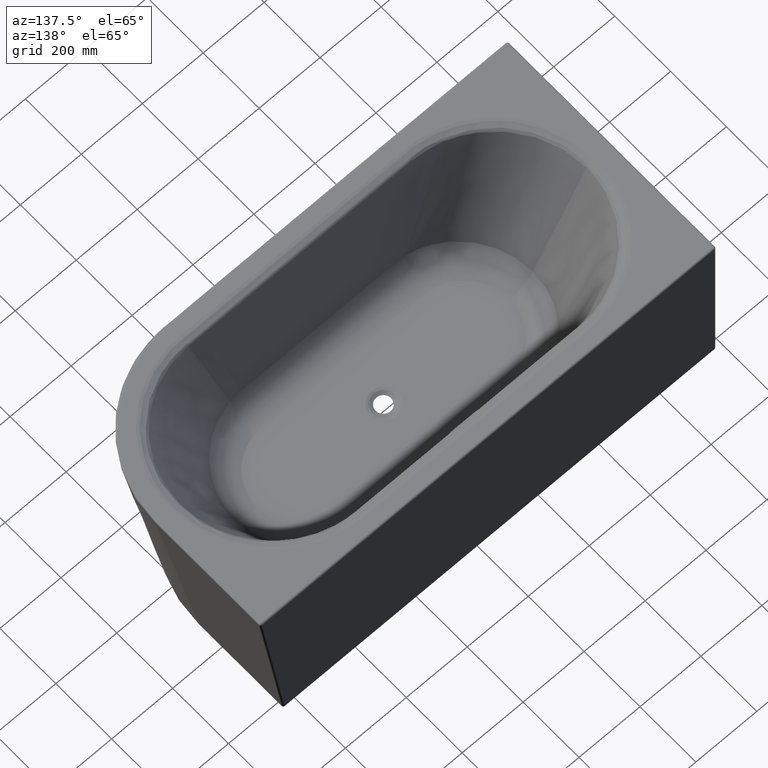
[diagram: clean part render]
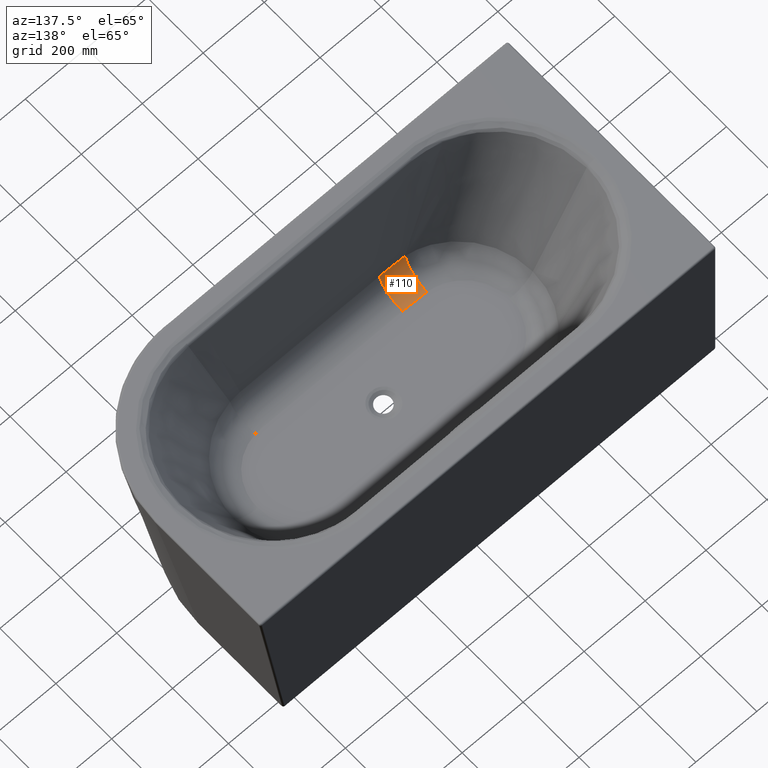
[diagram: same view with one face highlighted and labeled with its STEP entity id]
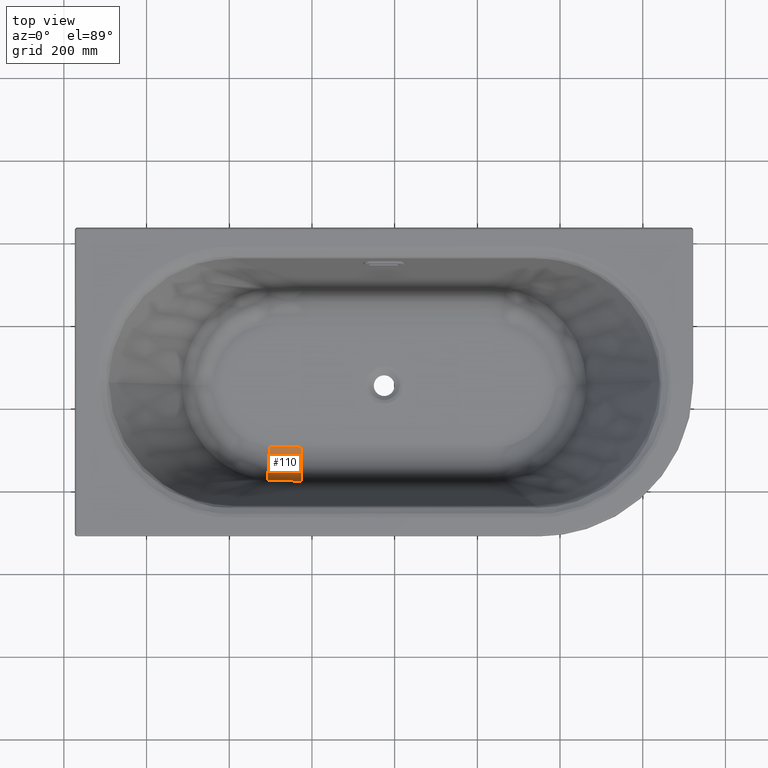
[diagram: same view with one face highlighted and labeled with its STEP entity id]
A machine part, auxiliary view. The second image highlights one B-rep face of the part: STEP entity #110.
A second angle (top view) of the same face is appended — the face is thin or edge-on in the first view.
In plain terms, the highlighted face is a freeform B-spline surface patch.
Its self-contained STEP definition (entity closure, byte-faithful):
#110=ADVANCED_FACE('',(#209),#2820,.T.);
#209=FACE_OUTER_BOUND('',#307,.T.);
#307=EDGE_LOOP('',(#550,#551,#552,#553,#554));
#550=ORIENTED_EDGE('',*,*,#2428,.T.);
#551=ORIENTED_EDGE('',*,*,#2429,.T.);
#552=ORIENTED_EDGE('',*,*,#2404,.F.);
#553=ORIENTED_EDGE('',*,*,#2427,.F.);
#554=ORIENTED_EDGE('',*,*,#2430,.T.);
#965=B_SPLINE_CURVE_WITH_KNOTS('',3,(#6560,#6561,#6562,#6563),
 .UNSPECIFIED.,.F.,.F.,(4,4),(-32.0872347102948,45.4151352668925),
 .UNSPECIFIED.);
#1015=B_SPLINE_CURVE_WITH_KNOTS('',3,(#7268,#7269,#7270,#7271,#7272,#7273,
#7274,#7275,#7276,#7277,#7278,#7279,#7280,#7281,#7282,#7283,#7284,#7285,
#7286),.UNSPECIFIED.,.F.,.F.,(4,1,1,1,1,1,1,1,1,1,1,1,1,1,1,1,4),(-116.389537965102,
-109.577034665057,-102.590154444686,-95.4465690161393,-88.166951918036,
-80.774753625021,-73.2958461006039,-65.7580439389367,-58.190520306169,-50.6231460979505,
-43.085788661365,-35.60761072539,-28.2164101632802,-20.9380368619322,-13.7959150388369,
-6.81068908766003,0.),.UNSPECIFIED.);
#1016=B_SPLINE_CURVE_WITH_KNOTS('',3,(#7287,#7288,#7289,#7290,#7291,#7292,
#7293,#7294,#7295,#7296,#7297,#7298,#7299,#7300,#7301,#7302,#7303,#7304,
#7305,#7306,#7307,#7308,#7309,#7310,#7311,#7312,#7313,#7314,#7315,#7316,
#7317,#7318,#7319,#7320,#7321,#7322,#7323,#7324,#7325,#7326,#7327,#7328,
#7329,#7330,#7331,#7332,#7333,#7334,#7335),.UNSPECIFIED.,.F.,.F.,(4,3,3,
3,3,3,3,3,3,3,3,3,3,3,3,3,4),(-116.389537965102,-109.114493566142,-101.839600853823,
-94.5648481651128,-87.2902233556285,-80.0157138422855,-72.74130666991,-65.4669885946587,
-58.1927462020986,-50.9185660510756,-43.6444348477708,-36.3703396513264,
-29.0962681091885,-21.822208715979,-14.548151092487,-7.27408627330581,0.),
 .UNSPECIFIED.);
#1019=B_SPLINE_CURVE_WITH_KNOTS('',1,(#7345,#7346),.UNSPECIFIED.,.F.,.F.,
(2,2),(-32.171669215299,45.4151352668924),.UNSPECIFIED.);
#1020=B_SPLINE_CURVE_WITH_KNOTS('',1,(#7350,#7351),.UNSPECIFIED.,.F.,.F.,
(2,2),(0.,200.439606159349),.UNSPECIFIED.);
#1021=B_SPLINE_CURVE_WITH_KNOTS('',1,(#7352,#7353),.UNSPECIFIED.,.F.,.F.,
(2,2),(-32.0872347102948,45.4151352668925),.UNSPECIFIED.);
#1022=B_SPLINE_CURVE_WITH_KNOTS('',3,(#7354,#7355,#7356,#7357,#7358,#7359,
#7360,#7361,#7362,#7363,#7364,#7365,#7366,#7367,#7368,#7369,#7370,#7371,
#7372,#7373,#7374,#7375,#7376,#7377,#7378,#7379,#7380,#7381,#7382,#7383,
#7384,#7385,#7386,#7387,#7388,#7389,#7390,#7391,#7392,#7393,#7394,#7395,
#7396,#7397,#7398,#7399,#7400,#7401,#7402),.UNSPECIFIED.,.F.,.F.,(4,3,3,
3,3,3,3,3,3,3,3,3,3,3,3,3,4),(-116.389537965102,-109.115207614353,-101.840904897584,
-94.5666240171274,-87.2923587281165,-80.0181024104598,-72.7438481743444,
-65.4695889850505,-58.1953178162318,-50.9210278092273,-43.6467124310471,
-36.3723656194939,-29.0979819039549,-21.8235564909947,-14.5490853118906,
-7.2745650294011,0.),.UNSPECIFIED.);
#1023=B_SPLINE_CURVE_WITH_KNOTS('',3,(#7403,#7404,#7405,#7406),
 .UNSPECIFIED.,.F.,.F.,(4,4),(0.,0.0734268300844306),.UNSPECIFIED.);
#1024=B_SPLINE_CURVE_WITH_KNOTS('',1,(#7407,#7408),.UNSPECIFIED.,.F.,.F.,
(2,2),(0.,0.0734268300844306),.UNSPECIFIED.);
#1028=B_SPLINE_CURVE_WITH_KNOTS('',1,(#7420,#7421),.UNSPECIFIED.,.F.,.F.,
(2,2),(0.,200.439606159349),.UNSPECIFIED.);
#1066=B_SPLINE_CURVE_WITH_KNOTS('',1,(#8057,#8058),.UNSPECIFIED.,.F.,.F.,
(2,2),(0.,0.0734268300844306),.UNSPECIFIED.);
#1071=B_SPLINE_CURVE_WITH_KNOTS('',3,(#8104,#8105,#8106,#8107,#8108,#8109,
#8110),.UNSPECIFIED.,.F.,.F.,(4,3,4),(-32.171669215299,17.4764213870852,
45.4151352668924),.UNSPECIFIED.);
#1416=PCURVE('',#2884,#1835);
#1456=PCURVE('',#2819,#1875);
#1459=PCURVE('',#2820,#1878);
#1460=PCURVE('',#2820,#1879);
#1461=PCURVE('',#2820,#1880);
#1462=PCURVE('',#2820,#1881);
#1463=PCURVE('',#2820,#1882);
#1467=PCURVE('',#2821,#1886);
#1501=PCURVE('',#2828,#1920);
#1506=PCURVE('',#2829,#1925);
#1835=DEFINITIONAL_REPRESENTATION('',(#965),#9406);
#1875=DEFINITIONAL_REPRESENTATION('',(#1016),#9406);
#1878=DEFINITIONAL_REPRESENTATION('',(#1019),#9406);
#1879=DEFINITIONAL_REPRESENTATION('',(#1020),#9406);
#1880=DEFINITIONAL_REPRESENTATION('',(#1021),#9406);
#1881=DEFINITIONAL_REPRESENTATION('',(#1022),#9406);
#1882=DEFINITIONAL_REPRESENTATION('',(#1024),#9406);
#1886=DEFINITIONAL_REPRESENTATION('',(#1028),#9406);
#1920=DEFINITIONAL_REPRESENTATION('',(#1066),#9406);
#1925=DEFINITIONAL_REPRESENTATION('',(#1071),#9406);
#2193=SURFACE_CURVE('',#2582,(#1416,#1461),.PCURVE_S1.);
#2216=SURFACE_CURVE('',#1015,(#1456,#1462),.PCURVE_S1.);
#2217=SURFACE_CURVE('',#2595,(#1459,#1506),.PCURVE_S1.);
#2218=SURFACE_CURVE('',#2596,(#1460,#1467),.PCURVE_S1.);
#2219=SURFACE_CURVE('',#1023,(#1463,#1501),.PCURVE_S1.);
#2404=EDGE_CURVE('',#2724,#2725,#2193,.T.);
#2427=EDGE_CURVE('',#2722,#2724,#2216,.T.);
#2428=EDGE_CURVE('',#2718,#2738,#2217,.T.);
#2429=EDGE_CURVE('',#2738,#2725,#2218,.T.);
#2430=EDGE_CURVE('',#2722,#2718,#2219,.T.);
#2582=(
BOUNDED_CURVE()
B_SPLINE_CURVE(3,(#6555,#6556,#6557,#6558,#6559),.UNSPECIFIED.,.F.,.F.)
B_SPLINE_CURVE_WITH_KNOTS((4,1,4),(-32.0872347102948,17.725912570119,45.4151352668925),
 .UNSPECIFIED.)
CURVE()
GEOMETRIC_REPRESENTATION_ITEM()
RATIONAL_B_SPLINE_CURVE((1.,1.,1.,1.,1.))
REPRESENTATION_ITEM('')
);
#2595=(
BOUNDED_CURVE()
B_SPLINE_CURVE(3,(#7340,#7341,#7342,#7343,#7344),.UNSPECIFIED.,.F.,.F.)
B_SPLINE_CURVE_WITH_KNOTS((4,1,4),(-32.171669215299,17.725912554297,45.4151352668924),
 .UNSPECIFIED.)
CURVE()
GEOMETRIC_REPRESENTATION_ITEM()
RATIONAL_B_SPLINE_CURVE((1.,1.,1.,1.,1.))
REPRESENTATION_ITEM('')
);
#2596=(
BOUNDED_CURVE()
B_SPLINE_CURVE(2,(#7347,#7348,#7349),.UNSPECIFIED.,.F.,.F.)
B_SPLINE_CURVE_WITH_KNOTS((3,3),(0.,200.439606159349),.UNSPECIFIED.)
CURVE()
GEOMETRIC_REPRESENTATION_ITEM()
RATIONAL_B_SPLINE_CURVE((1.,0.775061215074657,1.))
REPRESENTATION_ITEM('')
);
#2718=VERTEX_POINT('',#6230);
#2722=VERTEX_POINT('',#6234);
#2724=VERTEX_POINT('',#6236);
#2725=VERTEX_POINT('',#6237);
#2738=VERTEX_POINT('',#6250);
#2819=(
BOUNDED_SURFACE()
B_SPLINE_SURFACE(3,2,((#4296,#4297,#4298),(#4299,#4300,#4301),(#4302,#4303,
#4304),(#4305,#4306,#4307),(#4308,#4309,#4310),(#4311,#4312,#4313),(#4314,
#4315,#4316),(#4317,#4318,#4319),(#4320,#4321,#4322),(#4323,#4324,#4325),
(#4326,#4327,#4328),(#4329,#4330,#4331),(#4332,#4333,#4334),(#4335,#4336,
#4337),(#4338,#4339,#4340),(#4341,#4342,#4343),(#4344,#4345,#4346),(#4347,
#4348,#4349),(#4350,#4351,#4352),(#4353,#4354,#4355),(#4356,#4357,#4358),
(#4359,#4360,#4361),(#4362,#4363,#4364),(#4365,#4366,#4367),(#4368,#4369,
#4370),(#4371,#4372,#4373),(#4374,#4375,#4376),(#4377,#4378,#4379),(#4380,
#4381,#4382),(#4383,#4384,#4385)),.UNSPECIFIED.,.F.,.F.,.F.)
B_SPLINE_SURFACE_WITH_KNOTS((4,1,1,1,1,1,1,1,1,3,1,1,1,1,1,1,1,1,1,1,1,
1,1,1,1,4),(3,3),(0.,22.9260371211013,45.1281712701692,70.1432039021566,
95.717226519646,121.49917296828,147.111677117397,172.181060073661,196.367582974789,
222.241477246022,237.358445586721,252.257421762263,272.743171057424,296.238911675039,
307.647904335141,319.056896995243,330.784827523687,342.512758052131,364.410601663001,
386.308445273872,407.328120441605,428.347795609337,448.929564873141,469.511334136945,
489.429434059154,509.347533981363),(0.,143.279126187194),.UNSPECIFIED.)
GEOMETRIC_REPRESENTATION_ITEM()
RATIONAL_B_SPLINE_SURFACE(((1.,0.855173634899784,1.),(0.999999999999999,
0.855173516088905,0.999999999999999),(1.,0.854661443021368,1.),(1.,0.852258844188708,
1.),(1.,0.847952775916201,1.),(1.,0.841281344501854,1.),(0.999999999999998,
0.832225524495354,0.999999999999998),(0.999999999999999,0.820823931241338,
0.999999999999999),(1.,0.807373334128689,1.),(1.,0.791877705199914,1.),
(0.999999999999999,0.780517753786603,0.999999999999999),(1.,0.77450252003775,
1.),(1.,0.770988450967109,1.),(0.999999999999998,0.763915876754117,0.999999999999998),
(1.,0.751902272565163,1.),(1.,0.738023072045508,1.),(1.,0.725541549006977,
1.),(0.999999999999997,0.715754831360632,0.999999999999997),(1.,0.708817872007796,
1.),(1.,0.702235843624369,1.),(0.999999999999999,0.694273654752463,0.999999999999999),
(1.,0.685657204036153,1.),(1.,0.677483056835672,1.),(1.,0.671360525472543,
1.),(0.999999999999999,0.667314222161437,0.999999999999999),(1.,0.665282767922058,
1.),(1.,0.66526904869766,1.),(1.,0.667214134989987,1.),(1.,0.669768877677087,
1.),(1.,0.671359554040108,1.)))
REPRESENTATION_ITEM('')
SURFACE()
);
#2820=(
BOUNDED_SURFACE()
B_SPLINE_SURFACE(3,2,((#4386,#4387,#4388),(#4389,#4390,#4391),(#4392,#4393,
#4394),(#4395,#4396,#4397),(#4398,#4399,#4400),(#4401,#4402,#4403),(#4404,
#4405,#4406),(#4407,#4408,#4409),(#4410,#4411,#4412),(#4413,#4414,#4415),
(#4416,#4417,#4418),(#4419,#4420,#4421),(#4422,#4423,#4424),(#4425,#4426,
#4427),(#4428,#4429,#4430),(#4431,#4432,#4433),(#4434,#4435,#4436),(#4437,
#4438,#4439),(#4440,#4441,#4442),(#4443,#4444,#4445),(#4446,#4447,#4448)),
 .UNSPECIFIED.,.F.,.F.,.F.)
B_SPLINE_SURFACE_WITH_KNOTS((4,1,1,1,1,1,1,1,3,1,1,1,3,1,4),(3,3),(-452.032191826847,
-423.262084644615,-394.383408987369,-365.680571600411,-337.338551622205,
-309.43617995054,-281.976729522052,-254.922016045041,-232.437199824063,
-182.149536736376,-130.237411229052,-78.810860773264,-32.171669215299,17.725912554297,
45.4151352668924),(0.,200.439606159349),.UNSPECIFIED.)
GEOMETRIC_REPRESENTATION_ITEM()
RATIONAL_B_SPLINE_SURFACE(((1.,0.381797014158928,1.),(1.,0.393862768084283,
1.),(1.,0.420053736843257,1.),(1.,0.462544808392269,1.),(1.,0.505518086612219,
1.),(1.,0.546750011141871,1.),(1.,0.584872013055188,1.),(1.,0.619221059916917,
1.),(1.,0.64802492580533,1.),(1.,0.664564740005357,1.),(1.,0.671663907758761,
1.),(0.999999999999999,0.687544901975801,0.999999999999999),(1.,0.7156386540246,
1.),(0.999999999999999,0.746047879559586,0.999999999999999),(1.,0.765325564264619,
1.),(1.,0.772175639406454,1.),(1.,0.774244667693639,1.),(1.,0.776456610008733,
1.),(1.,0.77778456018855,1.),(1.,0.776056218021752,1.),(1.,0.775061215074657,
1.)))
REPRESENTATION_ITEM('')
SURFACE()
);
#2821=(
BOUNDED_SURFACE()
B_SPLINE_SURFACE(1,2,((#4449,#4450,#4451),(#4452,#4453,#4454)),
 .UNSPECIFIED.,.F.,.F.,.F.)
B_SPLINE_SURFACE_WITH_KNOTS((2,2),(3,3),(-35.5972771230418,421.105758634592),
(0.,116.277341336956),.UNSPECIFIED.)
GEOMETRIC_REPRESENTATION_ITEM()
RATIONAL_B_SPLINE_SURFACE(((1.,0.775061215074276,1.),(1.,0.775061215074233,
1.)))
REPRESENTATION_ITEM('')
SURFACE()
);
#2828=(
BOUNDED_SURFACE()
B_SPLINE_SURFACE(2,3,((#4744,#4745,#4746,#4747),(#4748,#4749,#4750,#4751),
(#4752,#4753,#4754,#4755)),.UNSPECIFIED.,.F.,.F.,.F.)
B_SPLINE_SURFACE_WITH_KNOTS((3,3),(4,4),(1631.35390627309,2094.58608924197),
(0.,452.313264858247),.UNSPECIFIED.)
GEOMETRIC_REPRESENTATION_ITEM()
RATIONAL_B_SPLINE_SURFACE(((1.,1.,1.,1.),(0.76597682473794,0.746353476887476,
0.726730129037012,0.707106781186548),(0.905925070061199,0.9372833800408,
0.9686416900204,1.)))
REPRESENTATION_ITEM('')
SURFACE()
);
#2829=(
BOUNDED_SURFACE()
B_SPLINE_SURFACE(2,3,((#4756,#4757,#4758,#4759),(#4760,#4761,#4762,#4763),
(#4764,#4765,#4766,#4767)),.UNSPECIFIED.,.F.,.F.,.F.)
B_SPLINE_SURFACE_WITH_KNOTS((3,3),(4,4),(2094.58608924197,2211.11514135507),
(0.,452.313264858247),.UNSPECIFIED.)
GEOMETRIC_REPRESENTATION_ITEM()
RATIONAL_B_SPLINE_SURFACE(((0.905925070061199,0.9372833800408,0.9686416900204,
1.),(0.941129956448607,0.960753304299072,0.980376652149536,1.),(1.,1.,1.,
1.)))
REPRESENTATION_ITEM('')
SURFACE()
);
#2884=B_SPLINE_SURFACE_WITH_KNOTS('',1,1,((#3926,#3927),(#3928,#3929)),
 .UNSPECIFIED.,.F.,.F.,.F.,(2,2),(2,2),(-939.3,9.3),(-224.4,224.4),
 .UNSPECIFIED.);
#3926=CARTESIAN_POINT('',(-499.6919707303,-1368.97099180049,-400.));
#3927=CARTESIAN_POINT('',(-499.6919707303,-920.170991800494,-400.));
#3928=CARTESIAN_POINT('',(448.9080292697,-1368.97099180049,-400.));
#3929=CARTESIAN_POINT('',(448.9080292697,-920.170991800494,-400.));
#4296=CARTESIAN_POINT('',(-514.227651063111,-1144.57099180049,-354.32473079082));
#4297=CARTESIAN_POINT('',(-490.391970730371,-1144.57099180049,-399.999999999994));
#4298=CARTESIAN_POINT('',(-438.871393537805,-1144.57099180049,-400.));
#4299=CARTESIAN_POINT('',(-514.227867341069,-1155.98274867987,-354.324707849044));
#4300=CARTESIAN_POINT('',(-490.39235039624,-1154.79036402028,-399.999999999998));
#4301=CARTESIAN_POINT('',(-438.871694101296,-1152.21301710345,-400.));
#4302=CARTESIAN_POINT('',(-512.618440743628,-1178.45096290826,-354.17573005021));
#4303=CARTESIAN_POINT('',(-488.994126064593,-1174.92801492196,-400.000000000008));
#4304=CARTESIAN_POINT('',(-437.74057640139,-1167.25576542802,-400.));
#4305=CARTESIAN_POINT('',(-505.211590031438,-1212.7509886737,-353.478127447643));
#4306=CARTESIAN_POINT('',(-482.564028028695,-1205.71683371592,-399.999999999991));
#4307=CARTESIAN_POINT('',(-432.554232979772,-1190.11836044721,-400.));
#4308=CARTESIAN_POINT('',(-492.266723043811,-1246.99043543196,-352.232391273533));
#4309=CARTESIAN_POINT('',(-471.317664180667,-1236.58850897681,-399.99999999994));
#4310=CARTESIAN_POINT('',(-423.550482375112,-1212.73940111477,-400.));
#4311=CARTESIAN_POINT('',(-472.94004104933,-1280.50257831271,-350.314784856879));
#4312=CARTESIAN_POINT('',(-454.507637334821,-1267.05583796396,-400.000000000031));
#4313=CARTESIAN_POINT('',(-410.258735995296,-1234.56024514866,-399.999999999999));
#4314=CARTESIAN_POINT('',(-447.87304366669,-1310.838863751,-347.735959505291));
#4315=CARTESIAN_POINT('',(-432.639523281318,-1295.05256232609,-400.000000000266));
#4316=CARTESIAN_POINT('',(-393.277716348262,-1253.92324324941,-400.));
#4317=CARTESIAN_POINT('',(-417.866887453646,-1336.5396084528,-344.528977620228));
#4318=CARTESIAN_POINT('',(-406.307104559558,-1319.39481941038,-400.000000000532));
#4319=CARTESIAN_POINT('',(-373.309942929617,-1269.92246499294,-400.));
#4320=CARTESIAN_POINT('',(-384.2147941149,-1356.4278364068,-340.803159254548));
#4321=CARTESIAN_POINT('',(-376.472675456649,-1339.09721056686,-400.000000000946));
#4322=CARTESIAN_POINT('',(-351.328023732028,-1281.93770318416,-399.999999999999));
#4323=CARTESIAN_POINT('',(-347.170616972048,-1370.34982653551,-336.586878503555));
#4324=CARTESIAN_POINT('',(-343.097116857663,-1354.08172538893,-400.000000000981));
#4325=CARTESIAN_POINT('',(-327.533508468063,-1290.03294367592,-400.));
#4326=CARTESIAN_POINT('',(-321.033664423568,-1375.07411199682,-333.559114665521));
#4327=CARTESIAN_POINT('',(-319.194624418918,-1360.27921871094,-400.000000001389));
#4328=CARTESIAN_POINT('',(-310.969604558008,-1292.56535117395,-400.));
#4329=CARTESIAN_POINT('',(-307.392694738088,-1376.22120089399,-331.975206104026));
#4330=CARTESIAN_POINT('',(-306.555044894653,-1362.38211878438,-399.999999999888));
#4331=CARTESIAN_POINT('',(-302.360678342832,-1293.08564178374,-400.));
#4332=CARTESIAN_POINT('',(-299.422993509157,-1376.89280331858,-331.049835479983));
#4333=CARTESIAN_POINT('',(-299.078825790675,-1363.62704430786,-400.000000000067));
#4334=CARTESIAN_POINT('',(-297.330803917861,-1293.39023999418,-400.));
#4335=CARTESIAN_POINT('',(-283.511263132919,-1377.35279398021,-329.199992635413));
#4336=CARTESIAN_POINT('',(-284.021103077786,-1365.3314478034,-399.999999999965));
#4337=CARTESIAN_POINT('',(-287.311812460231,-1293.46201122881,-400.));
#4338=CARTESIAN_POINT('',(-256.802250074254,-1375.19573603592,-326.101587117796));
#4339=CARTESIAN_POINT('',(-258.343679652494,-1365.53973779578,-400.000000000021));
#4340=CARTESIAN_POINT('',(-270.535800934639,-1291.80900590555,-400.));
#4341=CARTESIAN_POINT('',(-226.228589395898,-1368.70416915308,-322.581896231382));
#4342=CARTESIAN_POINT('',(-228.224497846505,-1362.00823887782,-399.999999999985));
#4343=CARTESIAN_POINT('',(-251.341484519832,-1287.4780570447,-400.));
#4344=CARTESIAN_POINT('',(-198.845386822155,-1358.16970233405,-319.482292602524));
#4345=CARTESIAN_POINT('',(-200.579870994946,-1354.25755739342,-400.00000000001));
#4346=CARTESIAN_POINT('',(-234.09867295826,-1280.70766154595,-400.));
#4347=CARTESIAN_POINT('',(-177.33253533909,-1346.69239263567,-317.089043507267));
#4348=CARTESIAN_POINT('',(-178.356504922976,-1344.92112710211,-399.999999999996));
#4349=CARTESIAN_POINT('',(-220.492183429854,-1273.38992995498,-400.));
#4350=CARTESIAN_POINT('',(-162.048556665276,-1336.90834498588,-315.409262496569));
#4351=CARTESIAN_POINT('',(-162.272094729247,-1336.56071863368,-400.000000000004));
#4352=CARTESIAN_POINT('',(-210.794428148492,-1267.16420279201,-400.));
#4353=CARTESIAN_POINT('',(-147.494401753561,-1325.86202723594,-313.830653910939));
#4354=CARTESIAN_POINT('',(-146.732040246001,-1326.76563833397,-399.999999999999));
#4355=CARTESIAN_POINT('',(-201.526649766829,-1260.1370111838,-400.));
#4356=CARTESIAN_POINT('',(-129.80913389958,-1310.06417952654,-311.938393350223));
#4357=CARTESIAN_POINT('',(-127.53646656403,-1312.27854942344,-400.000000000002));
#4358=CARTESIAN_POINT('',(-190.224235401747,-1250.07886073647,-400.));
#4359=CARTESIAN_POINT('',(-110.513256370387,-1288.4234342429,-309.916561421012));
#4360=CARTESIAN_POINT('',(-106.215348676203,-1291.70270688803,-400.));
#4361=CARTESIAN_POINT('',(-177.82648360548,-1236.27118700224,-400.));
#4362=CARTESIAN_POINT('',(-91.9436576597864,-1260.26466417095,-308.024321856551));
#4363=CARTESIAN_POINT('',(-85.3293189789536,-1263.99287695249,-400.));
#4364=CARTESIAN_POINT('',(-165.825134192724,-1218.23840111505,-400.));
#4365=CARTESIAN_POINT('',(-77.7288911014139,-1230.27342158414,-306.621825863239));
#4366=CARTESIAN_POINT('',(-69.100478976413,-1233.6759156168,-399.999999999998));
#4367=CARTESIAN_POINT('',(-156.598728181417,-1198.97049574483,-400.));
#4368=CARTESIAN_POINT('',(-67.9411462786782,-1199.31768221455,-305.701929705442));
#4369=CARTESIAN_POINT('',(-57.832411314245,-1201.79630448635,-399.999999999992));
#4370=CARTESIAN_POINT('',(-150.230221313283,-1179.04017403209,-400.));
#4371=CARTESIAN_POINT('',(-62.428295470045,-1167.56114730817,-305.242180947997));
#4372=CARTESIAN_POINT('',(-51.5066003739812,-1168.72225379578,-399.999999999907));
#4373=CARTESIAN_POINT('',(-146.643644655928,-1158.57730065282,-400.));
#4374=CARTESIAN_POINT('',(-61.1934727470725,-1135.89687992568,-305.239083012167));
#4375=CARTESIAN_POINT('',(-50.2110423532103,-1135.60373365398,-400.000000000087));
#4376=CARTESIAN_POINT('',(-145.849120901994,-1138.18574139507,-400.));
#4377=CARTESIAN_POINT('',(-64.0866777756898,-1104.63404054951,-305.679263224146));
#4378=CARTESIAN_POINT('',(-53.7829187864569,-1102.98732594187,-399.999999999109));
#4379=CARTESIAN_POINT('',(-147.742822575449,-1118.09195557462,-400.));
#4380=CARTESIAN_POINT('',(-68.6624991403411,-1084.39037828354,-306.259940060091));
#4381=CARTESIAN_POINT('',(-59.257599468622,-1082.02042456889,-400.000000000228));
#4382=CARTESIAN_POINT('',(-150.716917345304,-1105.12081512101,-400.));
#4383=CARTESIAN_POINT('',(-71.6096773040572,-1074.44624773462,-306.623020636158));
#4384=CARTESIAN_POINT('',(-62.7524286586285,-1071.78791471327,-400.));
#4385=CARTESIAN_POINT('',(-152.625651709782,-1098.7616360274,-400.));
#4386=CARTESIAN_POINT('',(-726.839971714917,-1224.3419359814,-254.780723205487));
#4387=CARTESIAN_POINT('',(-792.93344026274,-1354.27557643404,-400.000000000794));
#4388=CARTESIAN_POINT('',(-699.641970729981,-1170.87318394329,-400.));
#4389=CARTESIAN_POINT('',(-719.527120892473,-1229.82547095896,-256.346707527263));
#4390=CARTESIAN_POINT('',(-783.042274061514,-1351.02593131995,-400.000000000619));
#4391=CARTESIAN_POINT('',(-691.093969729666,-1175.22116675178,-400.));
#4392=CARTESIAN_POINT('',(-704.736900736634,-1241.36607333384,-259.898703038736));
#4393=CARTESIAN_POINT('',(-761.734184271372,-1345.64768312896,-400.000000000331));
#4394=CARTESIAN_POINT('',(-674.095099485711,-1184.18332259156,-400.));
#4395=CARTESIAN_POINT('',(-681.486136351998,-1259.41540592986,-266.264898463695));
#4396=CARTESIAN_POINT('',(-725.964971767062,-1341.32625635586,-400.000000000087));
#4397=CARTESIAN_POINT('',(-648.722385954746,-1197.77491018487,-400.));
#4398=CARTESIAN_POINT('',(-656.833789613919,-1277.2377657364,-273.341167938493));
#4399=CARTESIAN_POINT('',(-689.468357696683,-1340.20286650409,-400.000000000047));
#4400=CARTESIAN_POINT('',(-623.305735632111,-1210.98061289018,-400.));
#4401=CARTESIAN_POINT('',(-630.860364253156,-1293.97757831062,-280.729074393032));
#4402=CARTESIAN_POINT('',(-653.545649362965,-1341.13322438526,-399.99999999997));
#4403=CARTESIAN_POINT('',(-597.843133682311,-1223.37546309727,-400.));
#4404=CARTESIAN_POINT('',(-603.826498772431,-1309.09662775595,-288.078272178583));
#4405=CARTESIAN_POINT('',(-618.769381701943,-1343.17536338026,-400.000000000065));
#4406=CARTESIAN_POINT('',(-572.347117508375,-1234.72019949594,-400.));
#4407=CARTESIAN_POINT('',(-576.050201899028,-1322.35353247064,-295.124714626889));
#4408=CARTESIAN_POINT('',(-585.285583689799,-1345.69624861615,-399.999999999885));
#4409=CARTESIAN_POINT('',(-546.831897875309,-1244.9178175072,-400.));
#4410=CARTESIAN_POINT('',(-549.291917548136,-1333.13119501212,-301.350633800323));
#4411=CARTESIAN_POINT('',(-554.632436880898,-1348.18845463634,-400.000000000237));
#4412=CARTESIAN_POINT('',(-522.634279809334,-1253.49088276983,-400.));
#4413=CARTESIAN_POINT('',(-531.747757784219,-1339.13257826548,-305.071306379828));
#4414=CARTESIAN_POINT('',(-535.097647467423,-1349.76626469233,-399.999999999569));
#4415=CARTESIAN_POINT('',(-506.877714021612,-1258.439523718,-400.));
#4416=CARTESIAN_POINT('',(-523.738709953222,-1341.67335032064,-306.69250884897));
#4417=CARTESIAN_POINT('',(-526.343502472599,-1350.45862392053,-400.000000000847));
#4418=CARTESIAN_POINT('',(-499.6919707303,-1260.57008328747,-400.));
#4419=CARTESIAN_POINT('',(-505.824621892865,-1347.35781240721,-310.319752960027));
#4420=CARTESIAN_POINT('',(-507.417390566958,-1351.9573525724,-399.99999999951));
#4421=CARTESIAN_POINT('',(-483.621015676687,-1265.33592900964,-400.));
#4422=CARTESIAN_POINT('',(-468.966749555555,-1357.02998085418,-316.990695754045));
#4423=CARTESIAN_POINT('',(-469.268026167658,-1354.82178190164,-400.000000000269));
#4424=CARTESIAN_POINT('',(-450.611652114261,-1273.83924743081,-400.));
#4425=CARTESIAN_POINT('',(-413.257847070297,-1366.86273829737,-324.585859918272));
#4426=CARTESIAN_POINT('',(-412.4539722149,-1358.25217833457,-399.999999999867));
#4427=CARTESIAN_POINT('',(-400.254659857826,-1283.28292005658,-400.));
#4428=CARTESIAN_POINT('',(-359.145863807893,-1372.9616778506,-329.562427103764));
#4429=CARTESIAN_POINT('',(-358.179881213258,-1360.72313552719,-400.00000000009));
#4430=CARTESIAN_POINT('',(-350.643568999525,-1289.59322007989,-400.));
#4431=CARTESIAN_POINT('',(-324.052732942064,-1375.36365630701,-331.362769253631));
#4432=CARTESIAN_POINT('',(-323.122461856482,-1361.92922777036,-399.999999999956));
#4433=CARTESIAN_POINT('',(-318.048682705452,-1292.16096074035,-400.));
#4434=CARTESIAN_POINT('',(-307.4296216961,-1376.2328278768,-331.907316926846));
#4435=CARTESIAN_POINT('',(-306.61660688267,-1362.43631061632,-400.));
#4436=CARTESIAN_POINT('',(-302.529248761886,-1293.07557335598,-400.));
#4437=CARTESIAN_POINT('',(-289.644865341985,-1377.16101901905,-332.489954098458));
#4438=CARTESIAN_POINT('',(-289.054035418717,-1362.97596165333,-400.000000000334));
#4439=CARTESIAN_POINT('',(-285.925315021342,-1294.0537096427,-400.));
#4440=CARTESIAN_POINT('',(-262.109752377909,-1378.12250452646,-332.841431367988));
#4441=CARTESIAN_POINT('',(-261.734644035866,-1363.70825763237,-399.999999997912));
#4442=CARTESIAN_POINT('',(-260.076729999903,-1295.03008788008,-400.));
#4443=CARTESIAN_POINT('',(-234.735552435625,-1378.47663565428,-332.384545684966));
#4444=CARTESIAN_POINT('',(-234.635879320771,-1364.34848998371,-399.999999999203));
#4445=CARTESIAN_POINT('',(-234.214498844874,-1295.272854314,-400.));
#4446=CARTESIAN_POINT('',(-224.984732580974,-1378.53039934616,-332.122380809212));
#4447=CARTESIAN_POINT('',(-224.984732580974,-1364.57099180049,-400.));
#4448=CARTESIAN_POINT('',(-224.984732580974,-1295.27282266136,-400.));
#4449=CARTESIAN_POINT('',(-224.984732580995,-1378.53039934618,-332.122380809102));
#4450=CARTESIAN_POINT('',(-224.984732581435,-1364.57099180057,-399.999999999955));
#4451=CARTESIAN_POINT('',(-224.984732580979,-1295.27282266138,-400.));
#4452=CARTESIAN_POINT('',(231.718303176653,-1378.53039934618,-332.12238080909));
#4453=CARTESIAN_POINT('',(231.718303176211,-1364.57099180058,-399.99999999995));
#4454=CARTESIAN_POINT('',(231.718303176641,-1295.27282266139,-400.));
#4744=CARTESIAN_POINT('',(-693.3919707303,-1144.57099180049,-11.));
#4745=CARTESIAN_POINT('',(-625.725304063633,-1144.57099180049,-140.666666666667));
#4746=CARTESIAN_POINT('',(-558.058637396967,-1144.57099180049,-270.333333333333));
#4747=CARTESIAN_POINT('',(-490.3919707303,-1144.57099180049,-400.));
#4748=CARTESIAN_POINT('',(-693.3919707303,-1365.84998042547,-11.));
#4749=CARTESIAN_POINT('',(-629.283528360836,-1365.44606925032,-133.848197446904));
#4750=CARTESIAN_POINT('',(-561.712941752398,-1365.02034505497,-263.330750110365));
#4751=CARTESIAN_POINT('',(-490.3919707303,-1364.57099180049,-400.));
#4752=CARTESIAN_POINT('',(-481.9807285153,-1431.19274951283,-11.));
#4753=CARTESIAN_POINT('',(-406.731783073353,-1407.49953885352,-149.343076840883));
#4754=CARTESIAN_POINT('',(-336.354979272878,-1385.34039192886,-278.728857848222));
#4755=CARTESIAN_POINT('',(-270.3919707303,-1364.57099180049,-400.));
#4756=CARTESIAN_POINT('',(-481.9807285153,-1431.19274951283,-11.));
#4757=CARTESIAN_POINT('',(-406.731783073353,-1407.49953885352,-149.343076840883));
#4758=CARTESIAN_POINT('',(-336.354979272878,-1385.34039192886,-278.728857848222));
#4759=CARTESIAN_POINT('',(-270.3919707303,-1364.57099180049,-400.));
#4760=CARTESIAN_POINT('',(-438.696508085241,-1444.57099180049,-11.));
#4761=CARTESIAN_POINT('',(-366.250996125416,-1416.81499393159,-145.963539637541));
#4762=CARTESIAN_POINT('',(-296.705641933069,-1390.17013146136,-275.524183399032));
#4763=CARTESIAN_POINT('',(-229.889713094122,-1364.57099180049,-400.));
#4764=CARTESIAN_POINT('',(-393.3919707303,-1444.57099180049,-11.));
#4765=CARTESIAN_POINT('',(-325.390465639515,-1417.90432513383,-140.666666666667));
#4766=CARTESIAN_POINT('',(-257.38896054873,-1391.23765846716,-270.333333333333));
#4767=CARTESIAN_POINT('',(-189.387455457945,-1364.57099180049,-400.));
#6230=CARTESIAN_POINT('',(-307.4296216961,-1376.2328278768,-331.907316926846));
#6234=CARTESIAN_POINT('',(-307.412814465812,-1376.21950708271,-331.977542258679));
#6236=CARTESIAN_POINT('',(-302.444958839675,-1293.08052896015,-400.));
#6237=CARTESIAN_POINT('',(-224.984732580977,-1295.27282266137,-400.));
#6250=CARTESIAN_POINT('',(-224.98473258098,-1378.53039934616,-332.12238080918));
#6555=CARTESIAN_POINT('',(-302.444958839675,-1293.08052896015,-400.));
#6556=CARTESIAN_POINT('',(-285.869054796155,-1294.05582848331,-400.));
#6557=CARTESIAN_POINT('',(-260.048585018374,-1295.03034896763,-400.));
#6558=CARTESIAN_POINT('',(-234.214498791829,-1295.27285349685,-400.));
#6559=CARTESIAN_POINT('',(-224.984732580977,-1295.27282266137,-400.));
#6560=CARTESIAN_POINT('',(-742.052988036064,-148.509536327324));
#6561=CARTESIAN_POINT('',(-716.26274078611,-150.026230724937));
#6562=CARTESIAN_POINT('',(-690.426459662926,-150.7010368925));
#6563=CARTESIAN_POINT('',(-664.592761850676,-150.70183086088));
#7268=CARTESIAN_POINT('',(-307.412814465812,-1376.21950708271,-331.977542258679));
#7269=CARTESIAN_POINT('',(-307.386152964106,-1375.76643434376,-334.202559848801));
#7270=CARTESIAN_POINT('',(-307.321368618818,-1374.6688013968,-338.674960761438));
#7271=CARTESIAN_POINT('',(-307.190410852808,-1372.45841533388,-345.303425360238));
#7272=CARTESIAN_POINT('',(-307.023308411185,-1369.64473789376,-351.869177809529));
#7273=CARTESIAN_POINT('',(-306.819683006086,-1366.22185788869,-358.291851498704));
#7274=CARTESIAN_POINT('',(-306.57999317822,-1362.19786882366,-364.489032854488));
#7275=CARTESIAN_POINT('',(-306.305573695082,-1357.59549289289,-370.378224609582));
#7276=CARTESIAN_POINT('',(-305.998647656436,-1352.45227106262,-375.880399179624));
#7277=CARTESIAN_POINT('',(-305.662281044933,-1346.81978537497,-380.923219115619));
#7278=CARTESIAN_POINT('',(-305.300286743955,-1340.76204037469,-385.444115420456));
#7279=CARTESIAN_POINT('',(-304.917081800063,-1334.35306586586,-389.39283426983));
#7280=CARTESIAN_POINT('',(-304.517509984005,-1327.6739438792,-392.733275766201));
#7281=CARTESIAN_POINT('',(-304.106642345042,-1320.80947325771,-395.444461510168));
#7282=CARTESIAN_POINT('',(-303.68957948773,-1313.84486519154,-397.520648423514));
#7283=CARTESIAN_POINT('',(-303.271245231988,-1306.86230851878,-398.970427082772));
#7284=CARTESIAN_POINT('',(-302.856280389137,-1299.93917734375,-399.81571236342));
#7285=CARTESIAN_POINT('',(-302.580883301713,-1295.34668590204,-399.99970502145));
#7286=CARTESIAN_POINT('',(-302.444958839675,-1293.08052896015,-400.));
#7287=CARTESIAN_POINT('',(222.228756201206,0.));
#7288=CARTESIAN_POINT('',(222.228260699598,2.98526872526894));
#7289=CARTESIAN_POINT('',(222.227712691924,5.97053744205193));
#7290=CARTESIAN_POINT('',(222.227113672769,8.95580614855058));
#7291=CARTESIAN_POINT('',(222.226514666105,11.9410126113899));
#7292=CARTESIAN_POINT('',(222.225864650087,14.9262190639453));
#7293=CARTESIAN_POINT('',(222.225159141114,17.9114255034577));
#7294=CARTESIAN_POINT('',(222.224453645719,20.8965744851638));
#7295=CARTESIAN_POINT('',(222.223692659505,23.8817234538273));
#7296=CARTESIAN_POINT('',(222.222873363756,26.8668724065165));
#7297=CARTESIAN_POINT('',(222.222054082409,29.8519688847706));
#7298=CARTESIAN_POINT('',(222.221176493577,32.8370653470509));
#7299=CARTESIAN_POINT('',(222.22023747207,35.8221617900506));
#7300=CARTESIAN_POINT('',(222.219298465445,38.8072109220053));
#7301=CARTESIAN_POINT('',(222.218298028092,41.7922600346801));
#7302=CARTESIAN_POINT('',(222.217233346414,44.7773091244785));
#7303=CARTESIAN_POINT('',(222.216168679714,47.7623162193064));
#7304=CARTESIAN_POINT('',(222.215039770496,50.7473232912586));
#7305=CARTESIAN_POINT('',(222.21384405472,53.7323303364857));
#7306=CARTESIAN_POINT('',(222.21264835359,56.7173008212707));
#7307=CARTESIAN_POINT('',(222.211385847538,59.7022712793314));
#7308=CARTESIAN_POINT('',(222.210054355049,62.6872417066497));
#7309=CARTESIAN_POINT('',(222.208722876413,65.6721810780542));
#7310=CARTESIAN_POINT('',(222.207322412775,68.6571204187171));
#7311=CARTESIAN_POINT('',(222.205851258096,71.6420597245617));
#7312=CARTESIAN_POINT('',(222.204380116004,74.6269734899857));
#7313=CARTESIAN_POINT('',(222.202838284081,77.6118872205922));
#7314=CARTESIAN_POINT('',(222.201224646135,80.5968009123933));
#7315=CARTESIAN_POINT('',(222.199611019048,83.5816945188086));
#7316=CARTESIAN_POINT('',(222.197925586906,86.5665880864192));
#7317=CARTESIAN_POINT('',(222.196167933106,89.5514816115016));
#7318=CARTESIAN_POINT('',(222.194410288007,92.5363603613976));
#7319=CARTESIAN_POINT('',(222.192580421966,95.521239068766));
#7320=CARTESIAN_POINT('',(222.19067875187,98.5061177303765));
#7321=CARTESIAN_POINT('',(222.188777087957,101.490986685593));
#7322=CARTESIAN_POINT('',(222.186803620457,104.475855595052));
#7323=CARTESIAN_POINT('',(222.184759644191,107.460724456192));
#7324=CARTESIAN_POINT('',(222.182715671338,110.445588332097));
#7325=CARTESIAN_POINT('',(222.180601189955,113.430452159683));
#7326=CARTESIAN_POINT('',(222.17841872781,116.415315937538));
#7327=CARTESIAN_POINT('',(222.176236266196,119.400178989201));
#7328=CARTESIAN_POINT('',(222.173985823854,122.385041991134));
#7329=CARTESIAN_POINT('',(222.171670295551,125.369904942464));
#7330=CARTESIAN_POINT('',(222.169354764957,128.3547708465));
#7331=CARTESIAN_POINT('',(222.166974148275,131.339636699934));
#7332=CARTESIAN_POINT('',(222.164535325494,134.324502505862));
#7333=CARTESIAN_POINT('',(222.162096495521,137.309377115352));
#7334=CARTESIAN_POINT('',(222.159599459106,140.294251677336));
#7335=CARTESIAN_POINT('',(222.157041878625,143.279126187194));
#7340=CARTESIAN_POINT('',(-307.4296216961,-1376.2328278768,-331.907316926846));
#7341=CARTESIAN_POINT('',(-289.644865341986,-1377.16101901905,-332.489954098452));
#7342=CARTESIAN_POINT('',(-262.109752377912,-1378.12250452646,-332.841431367971));
#7343=CARTESIAN_POINT('',(-234.73555243563,-1378.47663565428,-332.384545684938));
#7344=CARTESIAN_POINT('',(-224.98473258098,-1378.53039934616,-332.12238080918));
#7345=CARTESIAN_POINT('',(-32.171669215299,0.));
#7346=CARTESIAN_POINT('',(45.4151352668924,0.));
#7347=CARTESIAN_POINT('',(-224.98473258098,-1378.53039934616,-332.12238080918));
#7348=CARTESIAN_POINT('',(-224.984732580978,-1364.5709918005,-399.999999999984));
#7349=CARTESIAN_POINT('',(-224.984732580977,-1295.27282266137,-400.));
#7350=CARTESIAN_POINT('',(45.4151352668924,0.));
#7351=CARTESIAN_POINT('',(45.4151352668924,200.439606159349));
#7352=CARTESIAN_POINT('',(-32.0872347545806,200.439606159349));
#7353=CARTESIAN_POINT('',(45.4151352668924,200.439606159349));
#7354=CARTESIAN_POINT('',(-32.1567308493317,0.132493817247408));
#7355=CARTESIAN_POINT('',(-32.156764825565,4.30554993912375));
#7356=CARTESIAN_POINT('',(-32.1567103260788,8.4786060621596));
#7357=CARTESIAN_POINT('',(-32.1565707085157,12.6516621822671));
#7358=CARTESIAN_POINT('',(-32.1564310914831,16.8247024496234));
#7359=CARTESIAN_POINT('',(-32.1562063570202,20.9977427140514));
#7360=CARTESIAN_POINT('',(-32.1558864322629,25.1707829713565));
#7361=CARTESIAN_POINT('',(-32.155566508466,29.3438107018516));
#7362=CARTESIAN_POINT('',(-32.1551513949461,33.5168384252238));
#7363=CARTESIAN_POINT('',(-32.1546361079091,37.6898661362792));
#7364=CARTESIAN_POINT('',(-32.1541208219765,41.862884903009));
#7365=CARTESIAN_POINT('',(-32.1535053629562,46.035903657422));
#7366=CARTESIAN_POINT('',(-32.1527853280668,50.2089223938554));
#7367=CARTESIAN_POINT('',(-32.1520652940653,54.3819359837032));
#7368=CARTESIAN_POINT('',(-32.1512406844528,58.5549495555715));
#7369=CARTESIAN_POINT('',(-32.1503092989817,62.7279631036256));
#7370=CARTESIAN_POINT('',(-32.1493779137771,66.9009754575645));
#7371=CARTESIAN_POINT('',(-32.1483397527751,71.0739877876891));
#7372=CARTESIAN_POINT('',(-32.1471947192747,75.2470000884718));
#7373=CARTESIAN_POINT('',(-32.1460496849947,79.4200152307381));
#7374=CARTESIAN_POINT('',(-32.1447977780707,83.5930303436623));
#7375=CARTESIAN_POINT('',(-32.1434412540067,87.7660454225207));
#7376=CARTESIAN_POINT('',(-32.1420847277086,91.939067373658));
#7377=CARTESIAN_POINT('',(-32.1406235839259,96.1120892907294));
#7378=CARTESIAN_POINT('',(-32.1390624421664,100.285111170299));
#7379=CARTESIAN_POINT('',(-32.137501296364,104.458143856746));
#7380=CARTESIAN_POINT('',(-32.1358401520668,108.631176505691));
#7381=CARTESIAN_POINT('',(-32.134085912565,112.804209115382));
#7382=CARTESIAN_POINT('',(-32.1323316669448,116.977256279723));
#7383=CARTESIAN_POINT('',(-32.1304843254705,121.15030340481));
#7384=CARTESIAN_POINT('',(-32.1285528444869,125.32335049082));
#7385=CARTESIAN_POINT('',(-32.1266213551571,129.496415609172));
#7386=CARTESIAN_POINT('',(-32.1246057255908,133.669480688446));
#7387=CARTESIAN_POINT('',(-32.1225166768303,137.842545730834));
#7388=CARTESIAN_POINT('',(-32.1204276174716,142.015631943883));
#7389=CARTESIAN_POINT('',(-32.1182651381738,146.188718120045));
#7390=CARTESIAN_POINT('',(-32.1160411497924,150.3618042633));
#7391=CARTESIAN_POINT('',(-32.113817148663,154.53491432706));
#7392=CARTESIAN_POINT('',(-32.1115316377449,158.708024357911));
#7393=CARTESIAN_POINT('',(-32.1091978238726,162.881134361657));
#7394=CARTESIAN_POINT('',(-32.1068639953174,167.054270620006));
#7395=CARTESIAN_POINT('',(-32.1044818632002,171.227406851251));
#7396=CARTESIAN_POINT('',(-32.1020632854507,175.400543061279));
#7397=CARTESIAN_POINT('',(-32.0996446913756,179.573707440381));
#7398=CARTESIAN_POINT('',(-32.0971896511761,183.746871798266));
#7399=CARTESIAN_POINT('',(-32.0947162365135,187.920036145242));
#7400=CARTESIAN_POINT('',(-32.0922428066365,192.093226162119));
#7401=CARTESIAN_POINT('',(-32.0897510020703,196.266416168087));
#7402=CARTESIAN_POINT('',(-32.0872347545806,200.439606159349));
#7403=CARTESIAN_POINT('',(-307.412814465812,-1376.21950708271,-331.977542258679));
#7404=CARTESIAN_POINT('',(-307.41841667063,-1376.22395731165,-331.954135653357));
#7405=CARTESIAN_POINT('',(-307.424019137449,-1376.22839806301,-331.930727319904));
#7406=CARTESIAN_POINT('',(-307.4296216961,-1376.2328278768,-331.907316926846));
#7407=CARTESIAN_POINT('',(-32.1567308493317,0.132493817247408));
#7408=CARTESIAN_POINT('',(-32.171669215299,0.));
#7420=CARTESIAN_POINT('',(-35.5972771230417,0.));
#7421=CARTESIAN_POINT('',(-35.5972771230418,116.277341336956));
#8057=CARTESIAN_POINT('',(2094.55505139929,366.564520852672));
#8058=CARTESIAN_POINT('',(2094.58608924197,366.476285478819));
#8104=CARTESIAN_POINT('',(2094.58608924197,366.476285478819));
#8105=CARTESIAN_POINT('',(2119.39863183274,368.354284472496));
#8106=CARTESIAN_POINT('',(2144.24509654952,369.957294852201));
#8107=CARTESIAN_POINT('',(2169.11344689495,371.316357836246));
#8108=CARTESIAN_POINT('',(2183.10773583001,372.08115002453));
#8109=CARTESIAN_POINT('',(2197.1089552998,372.768691249341));
#8110=CARTESIAN_POINT('',(2211.11514135507,373.387949827424));
#9406=(
GEOMETRIC_REPRESENTATION_CONTEXT(2)
PARAMETRIC_REPRESENTATION_CONTEXT()
REPRESENTATION_CONTEXT('pspace','')
);